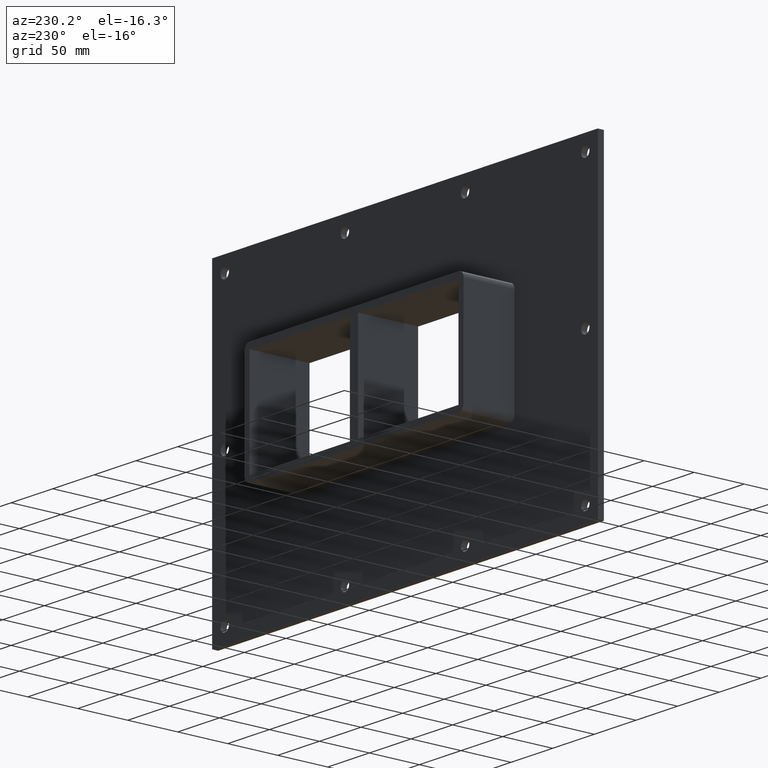
[diagram: clean part render]
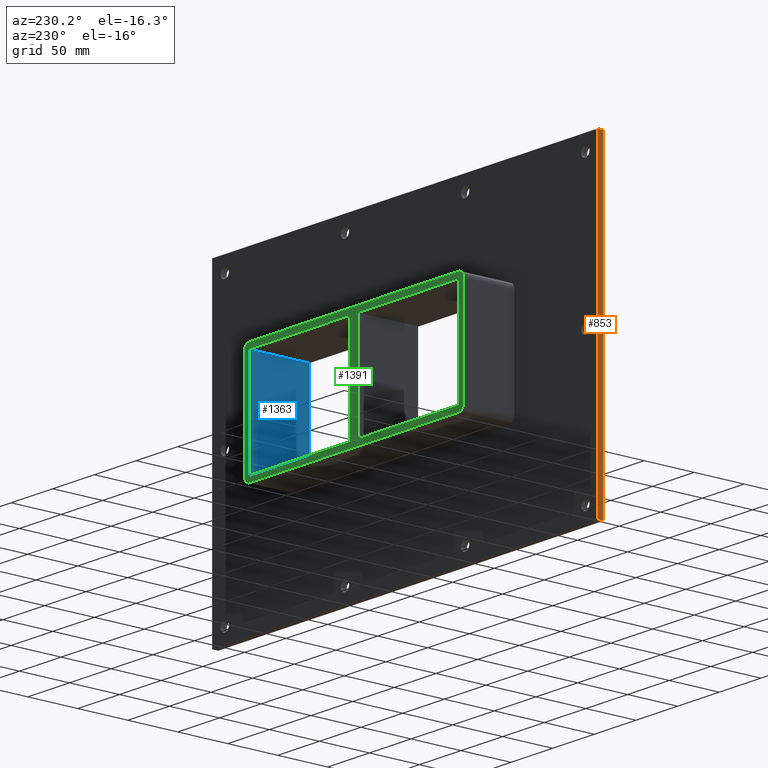
[diagram: same view with three faces highlighted in distinct colors, each labeled with its STEP entity id]
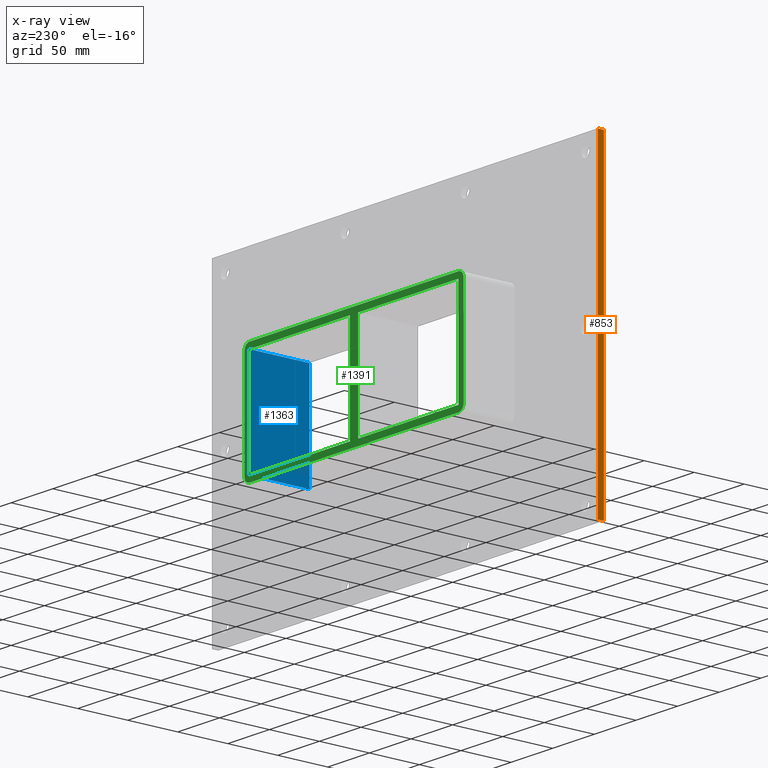
[diagram: x-ray of the same camera — body ghosted, the three highlighted faces saturated]
A machine part, auxiliary view with three faces highlighted in distinct colors.
The next image is the same camera in x-ray (body ghosted, the three faces saturated) — at least one of them is partly hidden behind the body in this view.
Their STEP definitions:

[orange] entity #853 — the highlighted planar face has unit normal (-1, 0, 0).
#557=CARTESIAN_POINT('',(-231.49999999999994,6.000000000000001,156.5));
#558=VERTEX_POINT('',#557);
#575=CARTESIAN_POINT('',(-231.49999999999994,6.000000000000001,-156.49999999999997));
#576=VERTEX_POINT('',#575);
#583=CARTESIAN_POINT('',(-231.49999999999994,6.000000000000001,-156.5));
#584=DIRECTION('',(0.0,0.0,1.0));
#585=VECTOR('',#584,313.0);
#586=LINE('',#583,#585);
#587=EDGE_CURVE('',#576,#558,#586,.T.);
#697=CARTESIAN_POINT('',(-231.49999999999994,0.0,156.5));
#698=VERTEX_POINT('',#697);
#707=CARTESIAN_POINT('',(-231.49999999999994,0.0,-156.5));
#708=VERTEX_POINT('',#707);
#709=CARTESIAN_POINT('',(-231.49999999999994,0.0,-156.5));
#710=DIRECTION('',(0.0,0.0,1.0));
#711=VECTOR('',#710,313.0);
#712=LINE('',#709,#711);
#713=EDGE_CURVE('',#708,#698,#712,.T.);
#832=CARTESIAN_POINT('',(-231.49999999999994,0.0,-156.5));
#833=DIRECTION('',(-1.0,0.0,0.0));
#834=DIRECTION('',(0.0,0.0,1.0));
#835=AXIS2_PLACEMENT_3D('',#832,#833,#834);
#836=PLANE('',#835);
#837=ORIENTED_EDGE('',*,*,#713,.T.);
#838=CARTESIAN_POINT('',(-231.49999999999994,0.0,156.5));
#839=DIRECTION('',(0.0,1.0,0.0));
#840=VECTOR('',#839,6.000000000000001);
#841=LINE('',#838,#840);
#842=EDGE_CURVE('',#698,#558,#841,.T.);
#843=ORIENTED_EDGE('',*,*,#842,.T.);
#844=ORIENTED_EDGE('',*,*,#587,.F.);
#845=CARTESIAN_POINT('',(-231.49999999999994,0.0,-156.5));
#846=DIRECTION('',(0.0,1.0,0.0));
#847=VECTOR('',#846,6.000000000000001);
#848=LINE('',#845,#847);
#849=EDGE_CURVE('',#708,#576,#848,.T.);
#850=ORIENTED_EDGE('',*,*,#849,.F.);
#851=EDGE_LOOP('',(#837,#843,#844,#850));
#852=FACE_OUTER_BOUND('',#851,.T.);
#853=ADVANCED_FACE('',(#852),#836,.T.);

[blue] entity #1363 — the highlighted planar face has unit normal (1, 0, 0).
#465=CARTESIAN_POINT('',(125.5,-3.0,-50.500000000000007));
#466=VERTEX_POINT('',#465);
#473=CARTESIAN_POINT('',(125.5,57.0,-50.500000000000007));
#474=VERTEX_POINT('',#473);
#475=CARTESIAN_POINT('',(125.5,56.999999999999993,-50.500000000000007));
#476=DIRECTION('',(0.0,-1.0,0.0));
#477=VECTOR('',#476,59.999999999999993);
#478=LINE('',#475,#477);
#479=EDGE_CURVE('',#474,#466,#478,.T.);
#496=CARTESIAN_POINT('',(125.5,57.0,50.500000000000007));
#497=VERTEX_POINT('',#496);
#504=CARTESIAN_POINT('',(125.5,-3.0,50.500000000000007));
#505=VERTEX_POINT('',#504);
#506=CARTESIAN_POINT('',(125.5,-3.0,50.500000000000007));
#507=DIRECTION('',(0.0,1.0,0.0));
#508=VECTOR('',#507,60.0);
#509=LINE('',#506,#508);
#510=EDGE_CURVE('',#505,#497,#509,.T.);
#1246=CARTESIAN_POINT('',(125.5,-3.0,50.500000000000007));
#1247=DIRECTION('',(0.0,0.0,-1.0));
#1248=VECTOR('',#1247,101.00000000000003);
#1249=LINE('',#1246,#1248);
#1250=EDGE_CURVE('',#505,#466,#1249,.T.);
#1347=CARTESIAN_POINT('',(125.5,0.0,50.500000000000007));
#1348=DIRECTION('',(1.0,0.0,0.0));
#1349=DIRECTION('',(0.0,0.0,-1.0));
#1350=AXIS2_PLACEMENT_3D('',#1347,#1348,#1349);
#1351=PLANE('',#1350);
#1352=ORIENTED_EDGE('',*,*,#479,.T.);
#1353=ORIENTED_EDGE('',*,*,#1250,.F.);
#1354=ORIENTED_EDGE('',*,*,#510,.T.);
#1355=CARTESIAN_POINT('',(125.5,57.0,-50.500000000000014));
#1356=DIRECTION('',(0.0,0.0,1.0));
#1357=VECTOR('',#1356,101.00000000000003);
#1358=LINE('',#1355,#1357);
#1359=EDGE_CURVE('',#474,#497,#1358,.T.);
#1360=ORIENTED_EDGE('',*,*,#1359,.F.);
#1361=EDGE_LOOP('',(#1352,#1353,#1354,#1360));
#1362=FACE_OUTER_BOUND('',#1361,.T.);
#1363=ADVANCED_FACE('',(#1362),#1351,.F.);

[green] entity #1391 — the highlighted planar face has unit normal (0, 1, 0).
#363=CARTESIAN_POINT('',(-5.00000000000135,57.0,50.500000000000007));
#364=VERTEX_POINT('',#363);
#371=CARTESIAN_POINT('',(-5.000000000001332,57.0,-50.500000000000007));
#372=VERTEX_POINT('',#371);
#373=CARTESIAN_POINT('',(-5.000000000001332,57.0,-50.500000000000007));
#374=DIRECTION('',(0.0,0.0,1.0));
#375=VECTOR('',#374,101.00000000000001);
#376=LINE('',#373,#375);
#377=EDGE_CURVE('',#372,#364,#376,.T.);
#403=CARTESIAN_POINT('',(5.0,57.0,-50.499999999984233));
#404=VERTEX_POINT('',#403);
#411=CARTESIAN_POINT('',(5.0,57.0,50.500000000000007));
#412=VERTEX_POINT('',#411);
#413=CARTESIAN_POINT('',(5.0,57.0,50.500000000000007));
#414=DIRECTION('',(0.0,0.0,-1.0));
#415=VECTOR('',#414,100.99999999998424);
#416=LINE('',#413,#415);
#417=EDGE_CURVE('',#412,#404,#416,.T.);
#434=CARTESIAN_POINT('',(-125.5,57.0,-50.500000000000007));
#435=VERTEX_POINT('',#434);
#436=CARTESIAN_POINT('',(-125.50000000000003,57.0,-50.500000000000007));
#437=DIRECTION('',(1.0,0.0,0.0));
#438=VECTOR('',#437,120.49999999999869);
#439=LINE('',#436,#438);
#440=EDGE_CURVE('',#435,#372,#439,.T.);
#473=CARTESIAN_POINT('',(125.5,57.0,-50.500000000000007));
#474=VERTEX_POINT('',#473);
#481=CARTESIAN_POINT('',(5.0,57.0,-50.500000000000007));
#482=DIRECTION('',(1.0,0.0,0.0));
#483=VECTOR('',#482,120.5);
#484=LINE('',#481,#483);
#485=EDGE_CURVE('',#404,#474,#484,.T.);
#496=CARTESIAN_POINT('',(125.5,57.0,50.500000000000007));
#497=VERTEX_POINT('',#496);
#498=CARTESIAN_POINT('',(125.50000000000001,57.0,50.500000000000007));
#499=DIRECTION('',(-1.0,0.0,0.0));
#500=VECTOR('',#499,120.50000000000001);
#501=LINE('',#498,#500);
#502=EDGE_CURVE('',#497,#412,#501,.T.);
#535=CARTESIAN_POINT('',(-125.5,57.0,50.500000000000007));
#536=VERTEX_POINT('',#535);
#543=CARTESIAN_POINT('',(-5.00000000000135,57.0,50.500000000000007));
#544=DIRECTION('',(-1.0,0.0,0.0));
#545=VECTOR('',#544,120.49999999999865);
#546=LINE('',#543,#545);
#547=EDGE_CURVE('',#364,#536,#546,.T.);
#906=CARTESIAN_POINT('',(-125.50000000000003,57.0,50.500000000000014));
#907=DIRECTION('',(0.0,0.0,-1.0));
#908=VECTOR('',#907,101.00000000000003);
#909=LINE('',#906,#908);
#910=EDGE_CURVE('',#536,#435,#909,.T.);
#960=CARTESIAN_POINT('',(131.5,57.0,50.500000000000007));
#961=VERTEX_POINT('',#960);
#968=CARTESIAN_POINT('',(125.50000000000003,57.0,56.5));
#969=VERTEX_POINT('',#968);
#970=CARTESIAN_POINT('',(125.5,57.0,50.500000000000007));
#971=DIRECTION('',(0.0,-1.0,0.0));
#972=DIRECTION('',(0.707106781186549,0.0,0.707106781186546));
#973=AXIS2_PLACEMENT_3D('',#970,#971,#972);
#974=CIRCLE('',#973,6.000000000000001);
#975=EDGE_CURVE('',#961,#969,#974,.T.);
#1016=CARTESIAN_POINT('',(131.5,57.0,-50.500000000000007));
#1017=VERTEX_POINT('',#1016);
#1024=CARTESIAN_POINT('',(131.5,57.0,50.5));
#1025=DIRECTION('',(0.0,0.0,-1.0));
#1026=VECTOR('',#1025,101.00000000000001);
#1027=LINE('',#1024,#1026);
#1028=EDGE_CURVE('',#961,#1017,#1027,.T.);
#1089=CARTESIAN_POINT('',(125.5,57.0,-56.5));
#1090=VERTEX_POINT('',#1089);
#1097=CARTESIAN_POINT('',(125.5,57.0,-50.500000000000007));
#1098=DIRECTION('',(0.0,-1.0,0.0));
#1099=DIRECTION('',(0.707106781186549,0.0,-0.707106781186546));
#1100=AXIS2_PLACEMENT_3D('',#1097,#1098,#1099);
#1101=CIRCLE('',#1100,6.000000000000001);
#1102=EDGE_CURVE('',#1090,#1017,#1101,.T.);
#1163=CARTESIAN_POINT('',(-125.50000000000003,57.0,-56.5));
#1164=VERTEX_POINT('',#1163);
#1171=CARTESIAN_POINT('',(125.5,57.0,-56.5));
#1172=DIRECTION('',(-1.0,0.0,0.0));
#1173=VECTOR('',#1172,251.0);
#1174=LINE('',#1171,#1173);
#1175=EDGE_CURVE('',#1090,#1164,#1174,.T.);
#1262=CARTESIAN_POINT('',(-131.5,57.0,-50.500000000000007));
#1263=VERTEX_POINT('',#1262);
#1270=CARTESIAN_POINT('',(-125.5,57.0,-50.500000000000007));
#1271=DIRECTION('',(0.0,-1.0,0.0));
#1272=DIRECTION('',(-0.707106781186549,0.0,-0.707106781186546));
#1273=AXIS2_PLACEMENT_3D('',#1270,#1271,#1272);
#1274=CIRCLE('',#1273,6.000000000000001);
#1275=EDGE_CURVE('',#1263,#1164,#1274,.T.);
#1287=CARTESIAN_POINT('',(-131.5,57.0,50.500000000000007));
#1288=VERTEX_POINT('',#1287);
#1295=CARTESIAN_POINT('',(-131.5,57.0,-50.5));
#1296=DIRECTION('',(0.0,0.0,1.0));
#1297=VECTOR('',#1296,101.00000000000001);
#1298=LINE('',#1295,#1297);
#1299=EDGE_CURVE('',#1263,#1288,#1298,.T.);
#1311=CARTESIAN_POINT('',(-125.5,57.0,56.5));
#1312=VERTEX_POINT('',#1311);
#1319=CARTESIAN_POINT('',(-125.5,57.0,50.500000000000007));
#1320=DIRECTION('',(0.0,-1.0,0.0));
#1321=DIRECTION('',(-0.707106781186549,0.0,0.707106781186546));
#1322=AXIS2_PLACEMENT_3D('',#1319,#1320,#1321);
#1323=CIRCLE('',#1322,6.000000000000001);
#1324=EDGE_CURVE('',#1312,#1288,#1323,.T.);
#1337=CARTESIAN_POINT('',(-125.5,57.0,56.5));
#1338=DIRECTION('',(1.0,0.0,0.0));
#1339=VECTOR('',#1338,251.0);
#1340=LINE('',#1337,#1339);
#1341=EDGE_CURVE('',#1312,#969,#1340,.T.);
#1355=CARTESIAN_POINT('',(125.5,57.0,-50.500000000000014));
#1356=DIRECTION('',(0.0,0.0,1.0));
#1357=VECTOR('',#1356,101.00000000000003);
#1358=LINE('',#1355,#1357);
#1359=EDGE_CURVE('',#474,#497,#1358,.T.);
#1364=CARTESIAN_POINT('',(0.0,57.0,0.0));
#1365=DIRECTION('',(0.0,1.0,0.0));
#1366=DIRECTION('',(0.0,0.0,1.0));
#1367=AXIS2_PLACEMENT_3D('',#1364,#1365,#1366);
#1368=PLANE('',#1367);
#1369=ORIENTED_EDGE('',*,*,#1102,.F.);
#1370=ORIENTED_EDGE('',*,*,#1175,.T.);
#1371=ORIENTED_EDGE('',*,*,#1275,.F.);
#1372=ORIENTED_EDGE('',*,*,#1299,.T.);
#1373=ORIENTED_EDGE('',*,*,#1324,.F.);
#1374=ORIENTED_EDGE('',*,*,#1341,.T.);
#1375=ORIENTED_EDGE('',*,*,#975,.F.);
#1376=ORIENTED_EDGE('',*,*,#1028,.T.);
#1377=EDGE_LOOP('',(#1369,#1370,#1371,#1372,#1373,#1374,#1375,#1376));
#1378=FACE_OUTER_BOUND('',#1377,.T.);
#1379=ORIENTED_EDGE('',*,*,#485,.T.);
#1380=ORIENTED_EDGE('',*,*,#1359,.T.);
#1381=ORIENTED_EDGE('',*,*,#502,.T.);
#1382=ORIENTED_EDGE('',*,*,#417,.T.);
#1383=EDGE_LOOP('',(#1379,#1380,#1381,#1382));
#1384=FACE_BOUND('',#1383,.T.);
#1385=ORIENTED_EDGE('',*,*,#377,.T.);
#1386=ORIENTED_EDGE('',*,*,#547,.T.);
#1387=ORIENTED_EDGE('',*,*,#910,.T.);
#1388=ORIENTED_EDGE('',*,*,#440,.T.);
#1389=EDGE_LOOP('',(#1385,#1386,#1387,#1388));
#1390=FACE_BOUND('',#1389,.T.);
#1391=ADVANCED_FACE('',(#1378,#1384,#1390),#1368,.T.);